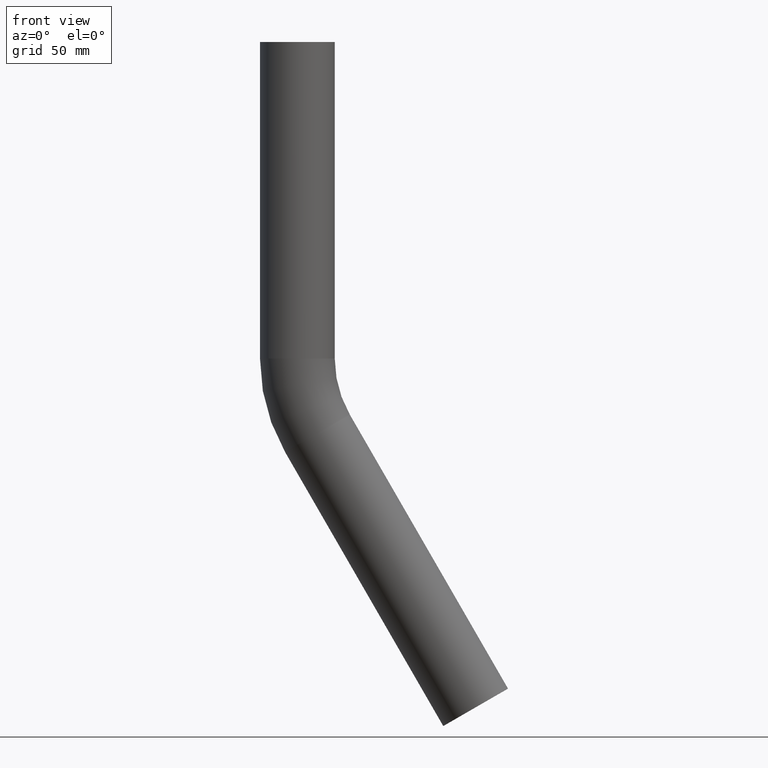
[diagram: clean part render]
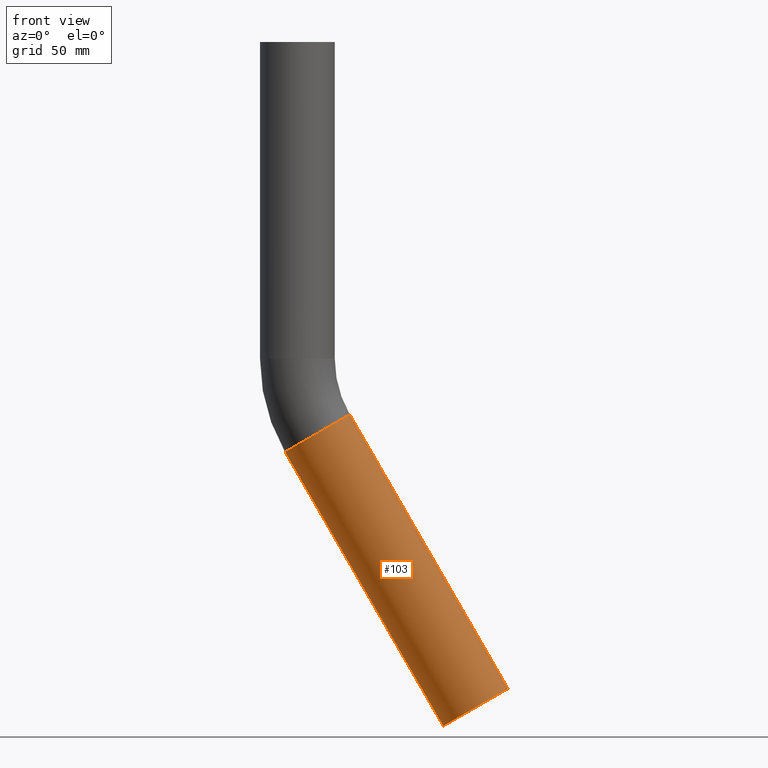
[diagram: same view with one face highlighted and labeled with its STEP entity id]
A machine part, front view. The second image highlights one B-rep face of the part: STEP entity #103.
In plain terms, the highlighted cylindrical surface (bore or boss wall) has radius 25.4 mm, axis along (0.5, 0, -0.866).
Its self-contained STEP definition (entity closure, byte-faithful):
#103=ADVANCED_FACE('',(#175,#177),#179,.T.);
#175=FACE_OUTER_BOUND('',#176,.T.);
#176=EDGE_LOOP('',(#212));
#177=FACE_OUTER_BOUND('',#178,.T.);
#178=EDGE_LOOP('',(#213));
#179=CYLINDRICAL_SURFACE('',#180,25.4);
#180=AXIS2_PLACEMENT_3D('',#181,#182,#183);
#181=CARTESIAN_POINT('',(13.611818975501,0.,-265.8));
#182=DIRECTION('',(0.5,0.,-0.866025403784439));
#183=DIRECTION('',(0.866025403784438,0.,0.5));
#212=ORIENTED_EDGE('',*,*,#222,.F.);
#213=ORIENTED_EDGE('',*,*,#224,.T.);
#222=EDGE_CURVE('',#234,#234,#235,.T.);
#224=EDGE_CURVE('',#238,#238,#239,.T.);
#234=VERTEX_POINT('',#262);
#235=CIRCLE('',#263,25.4);
#238=VERTEX_POINT('',#272);
#239=CIRCLE('',#273,25.4);
#262=CARTESIAN_POINT('',(143.108864231626,0.,-439.295461813654));
#263=AXIS2_PLACEMENT_3D('',#264,#265,#266);
#264=CARTESIAN_POINT('',(121.111818975501,0.,-451.995461813654));
#265=DIRECTION('',(0.5,0.,-0.866025403784439));
#266=DIRECTION('',(0.866025403784439,0.,0.5));
#272=CARTESIAN_POINT('',(35.6088642316258,0.,-253.1));
#273=AXIS2_PLACEMENT_3D('',#274,#275,#276);
#274=CARTESIAN_POINT('',(13.611818975501,0.,-265.8));
#275=DIRECTION('',(0.5,-0.,-0.866025403784439));
#276=DIRECTION('',(0.866025403784439,-1.22464679914735E-016,0.5));